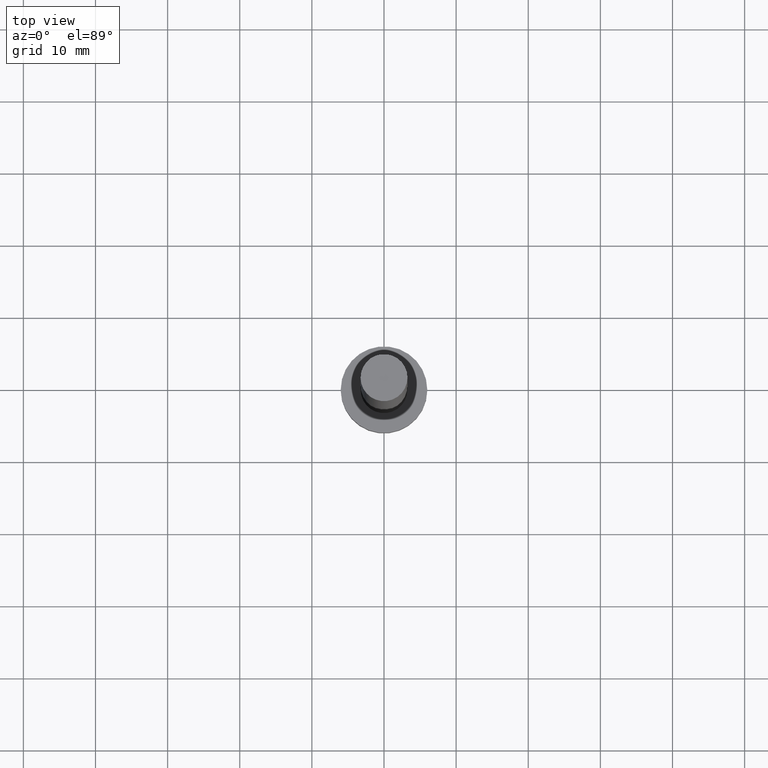
[diagram: clean part render]
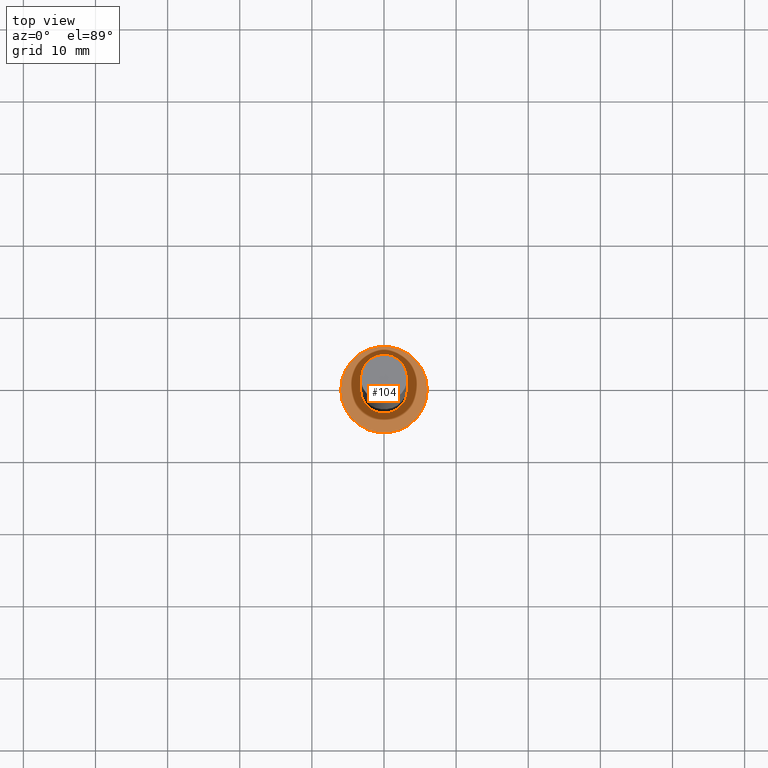
[diagram: same view with one face highlighted and labeled with its STEP entity id]
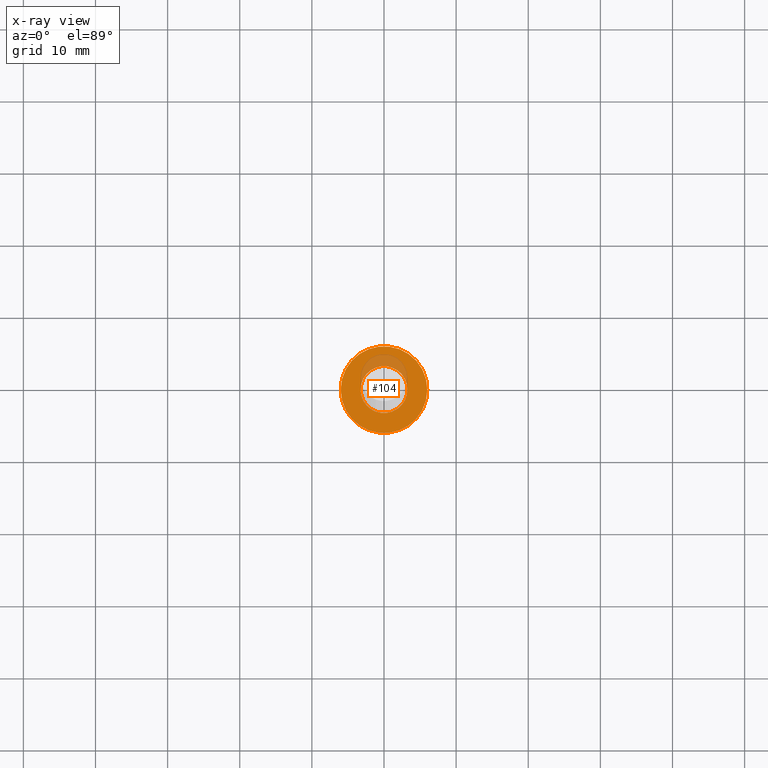
[diagram: x-ray of the same camera — body ghosted, the highlighted face saturated]
A machine part, top view. The second image highlights one B-rep face of the part: STEP entity #104.
The next image is the same camera in x-ray: the body ghosted, the highlighted face saturated — about 14% of this face is hidden behind the body in this view.
In plain terms, the highlighted planar face has unit normal (0, 0, 1).
Its self-contained STEP definition (entity closure, byte-faithful):
#5 = FACE_BOUND ( 'NONE', #245, .T. ) ;
#7 = AXIS2_PLACEMENT_3D ( 'NONE', #22, #81, #126 ) ;
#11 = CIRCLE ( 'NONE', #36, 6.000000000000000888 ) ;
#19 = CARTESIAN_POINT ( 'NONE',  ( 6.000000000000000888, 7.347880794884120722E-16, 5.000000000000000000 ) ) ;
#20 = DIRECTION ( 'NONE',  ( 1.000000000000000000, 0.000000000000000000, 0.000000000000000000 ) ) ;
#22 = CARTESIAN_POINT ( 'NONE',  ( 0.000000000000000000, 0.000000000000000000, 5.000000000000000000 ) ) ;
#26 = CARTESIAN_POINT ( 'NONE',  ( 3.250000000000000444, 3.980102097228898231E-16, 5.000000000000000000 ) ) ;
#27 = ORIENTED_EDGE ( 'NONE', *, *, #178, .F. ) ;
#30 = EDGE_CURVE ( 'NONE', #154, #211, #50, .T. ) ;
#36 = AXIS2_PLACEMENT_3D ( 'NONE', #240, #195, #197 ) ;
#39 = CARTESIAN_POINT ( 'NONE',  ( -6.000000000000000888, 0.000000000000000000, 5.000000000000000000 ) ) ;
#41 = DIRECTION ( 'NONE',  ( 1.000000000000000000, 0.000000000000000000, -0.000000000000000000 ) ) ;
#47 = CARTESIAN_POINT ( 'NONE',  ( -3.250000000000000444, 0.000000000000000000, 5.000000000000000000 ) ) ;
#50 = CIRCLE ( 'NONE', #196, 6.000000000000000888 ) ;
#52 = CIRCLE ( 'NONE', #229, 3.250000000000000444 ) ;
#55 = DIRECTION ( 'NONE',  ( 1.000000000000000000, 0.000000000000000000, 0.000000000000000000 ) ) ;
#67 = FACE_OUTER_BOUND ( 'NONE', #145, .T. ) ;
#81 = DIRECTION ( 'NONE',  ( 0.000000000000000000, 0.000000000000000000, 1.000000000000000000 ) ) ;
#85 = DIRECTION ( 'NONE',  ( 0.000000000000000000, 0.000000000000000000, 1.000000000000000000 ) ) ;
#93 = VERTEX_POINT ( 'NONE', #26 ) ;
#104 = ADVANCED_FACE ( 'NONE', ( #5, #67 ), #186, .T. ) ;
#107 = CIRCLE ( 'NONE', #7, 3.250000000000000444 ) ;
#121 = CARTESIAN_POINT ( 'NONE',  ( 0.000000000000000000, 0.000000000000000000, 5.000000000000000000 ) ) ;
#126 = DIRECTION ( 'NONE',  ( 1.000000000000000000, 0.000000000000000000, 0.000000000000000000 ) ) ;
#128 = EDGE_CURVE ( 'NONE', #211, #154, #11, .T. ) ;
#144 = DIRECTION ( 'NONE',  ( 0.000000000000000000, 0.000000000000000000, 1.000000000000000000 ) ) ;
#145 = EDGE_LOOP ( 'NONE', ( #249, #150 ) ) ;
#150 = ORIENTED_EDGE ( 'NONE', *, *, #30, .T. ) ;
#152 = DIRECTION ( 'NONE',  ( 0.000000000000000000, 0.000000000000000000, 1.000000000000000000 ) ) ;
#154 = VERTEX_POINT ( 'NONE', #19 ) ;
#178 = EDGE_CURVE ( 'NONE', #223, #93, #52, .T. ) ;
#186 = PLANE ( 'NONE',  #234 ) ;
#195 = DIRECTION ( 'NONE',  ( 0.000000000000000000, 0.000000000000000000, 1.000000000000000000 ) ) ;
#196 = AXIS2_PLACEMENT_3D ( 'NONE', #121, #85, #55 ) ;
#197 = DIRECTION ( 'NONE',  ( 1.000000000000000000, 0.000000000000000000, 0.000000000000000000 ) ) ;
#203 = CARTESIAN_POINT ( 'NONE',  ( 0.000000000000000000, 0.000000000000000000, 5.000000000000000000 ) ) ;
#204 = CARTESIAN_POINT ( 'NONE',  ( 0.000000000000000000, 0.000000000000000000, 5.000000000000000000 ) ) ;
#211 = VERTEX_POINT ( 'NONE', #39 ) ;
#212 = EDGE_CURVE ( 'NONE', #93, #223, #107, .T. ) ;
#223 = VERTEX_POINT ( 'NONE', #47 ) ;
#227 = ORIENTED_EDGE ( 'NONE', *, *, #212, .F. ) ;
#229 = AXIS2_PLACEMENT_3D ( 'NONE', #203, #144, #20 ) ;
#234 = AXIS2_PLACEMENT_3D ( 'NONE', #204, #152, #41 ) ;
#240 = CARTESIAN_POINT ( 'NONE',  ( 0.000000000000000000, 0.000000000000000000, 5.000000000000000000 ) ) ;
#245 = EDGE_LOOP ( 'NONE', ( #27, #227 ) ) ;
#249 = ORIENTED_EDGE ( 'NONE', *, *, #128, .T. ) ;